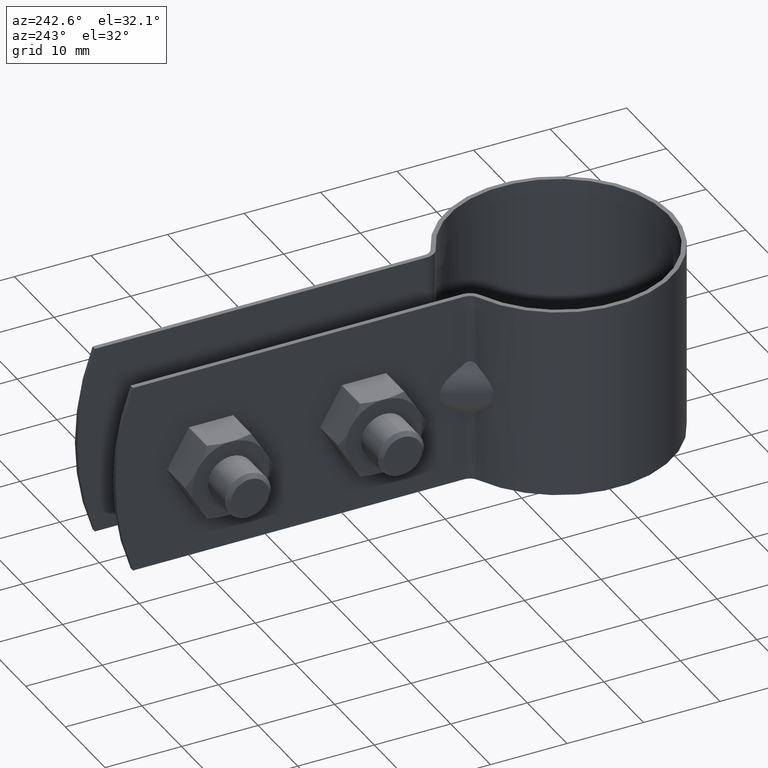
[diagram: clean part render]
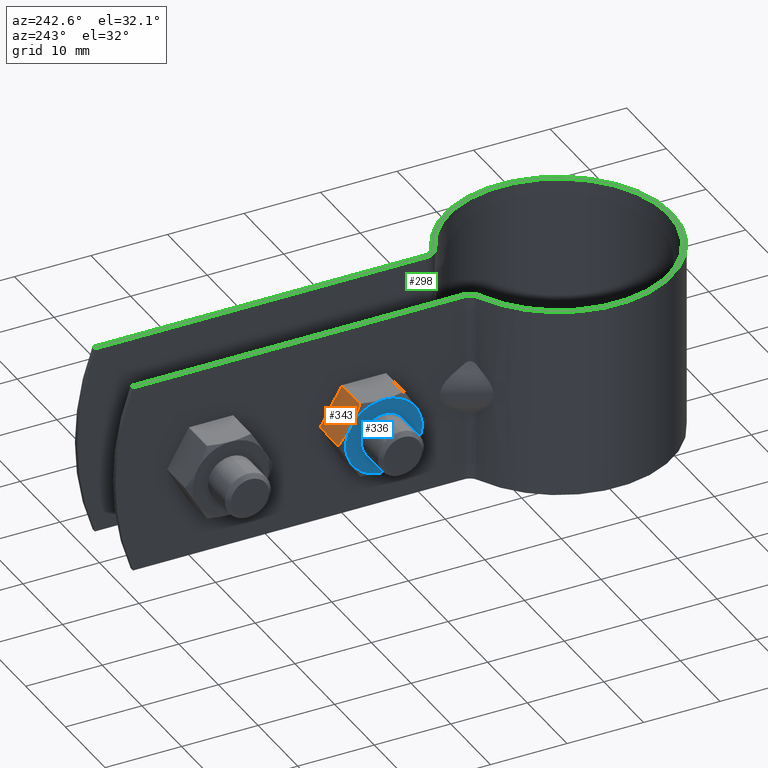
[diagram: same view with three faces highlighted in distinct colors, each labeled with its STEP entity id]
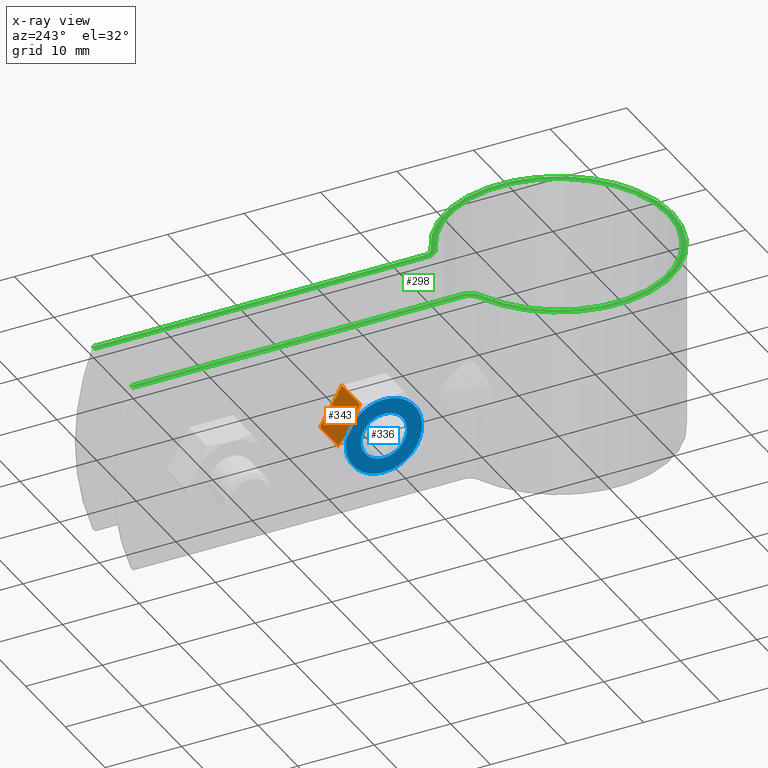
[diagram: x-ray of the same camera — body ghosted, the three highlighted faces saturated]
A machine part, auxiliary view with three faces highlighted in distinct colors.
The next image is the same camera in x-ray (body ghosted, the three faces saturated) — at least one of them is partly hidden behind the body in this view.
Their STEP definitions:

[orange] entity #343 — the highlighted planar face has unit normal (0, -0.866, -0.5).
#343 = ADVANCED_FACE( '', ( #544 ), #545, .F. );
#544 = FACE_OUTER_BOUND( '', #776, .T. );
#545 = PLANE( '', #777 );
#776 = EDGE_LOOP( '', ( #1438, #1439, #1440, #1441, #1442 ) );
#777 = AXIS2_PLACEMENT_3D( '', #1443, #1444, #1445 );
#1438 = ORIENTED_EDGE( '', *, *, #1812, .F. );
#1439 = ORIENTED_EDGE( '', *, *, #1817, .F. );
#1440 = ORIENTED_EDGE( '', *, *, #1811, .F. );
#1441 = ORIENTED_EDGE( '', *, *, #1808, .F. );
#1442 = ORIENTED_EDGE( '', *, *, #1818, .F. );
#1443 = CARTESIAN_POINT( '', ( -5.10000000000003, 33.8364706561729, -8.67361737988404E-016 ) );
#1444 = DIRECTION( '', ( 0.000000000000000, -0.866025403784439, -0.500000000000000 ) );
#1445 = DIRECTION( '', ( 0.000000000000000, 0.500000000000000, -0.866025403784439 ) );
#1808 = EDGE_CURVE( '', #2181, #2163, #2183, .T. );
#1811 = EDGE_CURVE( '', #2163, #2184, #2188, .F. );
#1812 = EDGE_CURVE( '', #2141, #2189, #2190, .T. );
#1817 = EDGE_CURVE( '', #2184, #2141, #2196, .T. );
#1818 = EDGE_CURVE( '', #2189, #2181, #2197, .T. );
#2141 = VERTEX_POINT( '', #2763 );
#2163 = VERTEX_POINT( '', #2798 );
#2181 = VERTEX_POINT( '', #2820 );
#2183 = LINE( '', #2822, #2823 );
#2184 = VERTEX_POINT( '', #2824 );
#2188 = LINE( '', #2829, #2830 );
#2189 = VERTEX_POINT( '', #2831 );
#2190 = B_SPLINE_CURVE_WITH_KNOTS( '', 3, ( #2832, #2833, #2834, #2835, #2836, #2837, #2838, #2839 ), .UNSPECIFIED., .F., .F., ( 4, 2, 2, 4 ), ( 0.00287277010488779, 0.00358771851305245, 0.00430266692121712, 0.00573256373754644 ), .UNSPECIFIED. );
#2196 = B_SPLINE_CURVE_WITH_KNOTS( '', 3, ( #2854, #2855, #2856, #2857 ), .UNSPECIFIED., .F., .F., ( 4, 4 ), ( 7.22330826799219E-007, 0.00287277010488779 ), .UNSPECIFIED. );
#2197 = LINE( '', #2858, #2859 );
#2763 = CARTESIAN_POINT( '', ( -10.0999999999999, 32.3930949831989, 2.49999999999993 ) );
#2798 = CARTESIAN_POINT( '', ( -5.10000000000003, 30.9733678967489, 4.95903944661311 ) );
#2820 = CARTESIAN_POINT( '', ( -5.10000000000003, 33.8128220696489, 0.0409605533867487 ) );
#2822 = CARTESIAN_POINT( '', ( -5.10000000000003, 33.8305949831989, 0.0101769641197375 ) );
#2823 = VECTOR( '', #3302, 1000.00000000000 );
#2824 = CARTESIAN_POINT( '', ( -9.66698729810768, 30.9733678967489, 4.95903944661311 ) );
#2829 = CARTESIAN_POINT( '', ( -5.10000000000003, 30.9733678967489, 4.95903944661311 ) );
#2830 = VECTOR( '', #3307, 1000.00000000000 );
#2831 = CARTESIAN_POINT( '', ( -9.66698729810768, 33.8128220696489, 0.0409605533867474 ) );
#2832 = CARTESIAN_POINT( '', ( -10.0999999999999, 32.3930949831989, 2.49999999999993 ) );
#2833 = CARTESIAN_POINT( '', ( -10.0999999999999, 32.5134064625444, 2.29161440503969 ) );
#2834 = CARTESIAN_POINT( '', ( -10.0898108720831, 32.6344131182986, 2.08202472921952 ) );
#2835 = CARTESIAN_POINT( '', ( -10.0502996398892, 32.8738213367538, 1.66735753110549 ) );
#2836 = CARTESIAN_POINT( '', ( -10.0210226875359, 32.9927379247126, 1.46138795889826 ) );
#2837 = CARTESIAN_POINT( '', ( -9.90799451667562, 33.3474035882059, 0.847089010027620 ) );
#2838 = CARTESIAN_POINT( '', ( -9.79913188755693, 33.5810756685147, 0.442357094622566 ) );
#2839 = CARTESIAN_POINT( '', ( -9.66698729810769, 33.8128220696489, 0.0409605533867456 ) );
#2854 = CARTESIAN_POINT( '', ( -9.66698729810769, 30.9733678967489, 4.95903944661310 ) );
#2855 = CARTESIAN_POINT( '', ( -9.93203573458736, 31.4381922345174, 4.15394007700352 ) );
#2856 = CARTESIAN_POINT( '', ( -10.0999999999999, 31.9097869395663, 3.33711408727835 ) );
#2857 = CARTESIAN_POINT( '', ( -10.0999999999999, 32.3930949831989, 2.49999999999993 ) );
#2858 = CARTESIAN_POINT( '', ( -5.10000000000003, 33.8128220696489, 0.0409605533867476 ) );
#2859 = VECTOR( '', #3312, 1000.00000000000 );
#3302 = DIRECTION( '', ( 0.000000000000000, -0.500000000000000, 0.866025403784439 ) );
#3307 = DIRECTION( '', ( 1.00000000000000, 0.000000000000000, 0.000000000000000 ) );
#3312 = DIRECTION( '', ( 1.00000000000000, 0.000000000000000, 0.000000000000000 ) );

[blue] entity #336 — the highlighted planar face has unit normal (1, 0, 0).
#336 = ADVANCED_FACE( '', ( #528, #529 ), #530, .F. );
#528 = FACE_OUTER_BOUND( '', #760, .T. );
#529 = FACE_BOUND( '', #761, .T. );
#530 = PLANE( '', #762 );
#760 = EDGE_LOOP( '', ( #1375, #1376, #1377, #1378, #1379, #1380 ) );
#761 = EDGE_LOOP( '', ( #1381 ) );
#762 = AXIS2_PLACEMENT_3D( '', #1382, #1383, #1384 );
#1375 = ORIENTED_EDGE( '', *, *, #1785, .F. );
#1376 = ORIENTED_EDGE( '', *, *, #1786, .F. );
#1377 = ORIENTED_EDGE( '', *, *, #1787, .F. );
#1378 = ORIENTED_EDGE( '', *, *, #1788, .F. );
#1379 = ORIENTED_EDGE( '', *, *, #1783, .F. );
#1380 = ORIENTED_EDGE( '', *, *, #1789, .F. );
#1381 = ORIENTED_EDGE( '', *, *, #1790, .T. );
#1382 = CARTESIAN_POINT( '', ( -10.0999999999999, 28.0629679642768, -8.67361737988404E-016 ) );
#1383 = DIRECTION( '', ( 1.00000000000000, 0.000000000000000, 0.000000000000000 ) );
#1384 = DIRECTION( '', ( 0.000000000000000, 0.000000000000000, -1.00000000000000 ) );
#1783 = EDGE_CURVE( '', #2135, #2137, #2138, .T. );
#1785 = EDGE_CURVE( '', #2140, #2141, #2142, .T. );
#1786 = EDGE_CURVE( '', #2143, #2140, #2144, .T. );
#1787 = EDGE_CURVE( '', #2145, #2143, #2146, .T. );
#1788 = EDGE_CURVE( '', #2137, #2145, #2147, .T. );
#1789 = EDGE_CURVE( '', #2141, #2135, #2148, .T. );
#1790 = EDGE_CURVE( '', #2149, #2149, #2150, .T. );
#2135 = VERTEX_POINT( '', #2745 );
#2137 = VERTEX_POINT( '', #2752 );
#2138 = CIRCLE( '', #2753, 4.99999999999986 );
#2140 = VERTEX_POINT( '', #2762 );
#2141 = VERTEX_POINT( '', #2763 );
#2142 = CIRCLE( '', #2764, 4.99999999999986 );
#2143 = VERTEX_POINT( '', #2765 );
#2144 = CIRCLE( '', #2766, 4.99999999999986 );
#2145 = VERTEX_POINT( '', #2767 );
#2146 = CIRCLE( '', #2768, 4.99999999999986 );
#2147 = CIRCLE( '', #2769, 4.99999999999986 );
#2148 = CIRCLE( '', #2770, 4.99999999999986 );
#2149 = VERTEX_POINT( '', #2771 );
#2150 = CIRCLE( '', #2772, 2.99999999999991 );
#2745 = CARTESIAN_POINT( '', ( -10.0999999999999, 28.0629679642768, 4.99999999999986 ) );
#2752 = CARTESIAN_POINT( '', ( -10.0999999999999, 23.7328409453548, 2.49999999999993 ) );
#2753 = AXIS2_PLACEMENT_3D( '', #3250, #3251, #3252 );
#2762 = CARTESIAN_POINT( '', ( -10.0999999999999, 32.3930949831989, -2.49999999999993 ) );
#2763 = CARTESIAN_POINT( '', ( -10.0999999999999, 32.3930949831989, 2.49999999999993 ) );
#2764 = AXIS2_PLACEMENT_3D( '', #3253, #3254, #3255 );
#2765 = CARTESIAN_POINT( '', ( -10.0999999999999, 28.0629679642768, -4.99999999999986 ) );
#2766 = AXIS2_PLACEMENT_3D( '', #3256, #3257, #3258 );
#2767 = CARTESIAN_POINT( '', ( -10.0999999999999, 23.7328409453548, -2.49999999999993 ) );
#2768 = AXIS2_PLACEMENT_3D( '', #3259, #3260, #3261 );
#2769 = AXIS2_PLACEMENT_3D( '', #3262, #3263, #3264 );
#2770 = AXIS2_PLACEMENT_3D( '', #3265, #3266, #3267 );
#2771 = CARTESIAN_POINT( '', ( -10.0999999999999, 28.0629679642768, -2.99999999999992 ) );
#2772 = AXIS2_PLACEMENT_3D( '', #3268, #3269, #3270 );
#3250 = CARTESIAN_POINT( '', ( -10.0999999999999, 28.0629679642768, -8.67361737988404E-016 ) );
#3251 = DIRECTION( '', ( 1.00000000000000, 0.000000000000000, 0.000000000000000 ) );
#3252 = DIRECTION( '', ( 0.000000000000000, 0.000000000000000, -1.00000000000000 ) );
#3253 = CARTESIAN_POINT( '', ( -10.0999999999999, 28.0629679642768, -8.67361737988404E-016 ) );
#3254 = DIRECTION( '', ( 1.00000000000000, 0.000000000000000, 0.000000000000000 ) );
#3255 = DIRECTION( '', ( 0.000000000000000, 0.000000000000000, -1.00000000000000 ) );
#3256 = CARTESIAN_POINT( '', ( -10.0999999999999, 28.0629679642768, -8.67361737988404E-016 ) );
#3257 = DIRECTION( '', ( 1.00000000000000, 0.000000000000000, 0.000000000000000 ) );
#3258 = DIRECTION( '', ( 0.000000000000000, 0.000000000000000, -1.00000000000000 ) );
#3259 = CARTESIAN_POINT( '', ( -10.0999999999999, 28.0629679642768, -8.67361737988404E-016 ) );
#3260 = DIRECTION( '', ( 1.00000000000000, 0.000000000000000, 0.000000000000000 ) );
#3261 = DIRECTION( '', ( 0.000000000000000, 0.000000000000000, -1.00000000000000 ) );
#3262 = CARTESIAN_POINT( '', ( -10.0999999999999, 28.0629679642768, -8.67361737988404E-016 ) );
#3263 = DIRECTION( '', ( 1.00000000000000, 0.000000000000000, 0.000000000000000 ) );
#3264 = DIRECTION( '', ( 0.000000000000000, 0.000000000000000, -1.00000000000000 ) );
#3265 = CARTESIAN_POINT( '', ( -10.0999999999999, 28.0629679642768, -8.67361737988404E-016 ) );
#3266 = DIRECTION( '', ( 1.00000000000000, 0.000000000000000, 0.000000000000000 ) );
#3267 = DIRECTION( '', ( 0.000000000000000, 0.000000000000000, -1.00000000000000 ) );
#3268 = CARTESIAN_POINT( '', ( -10.0999999999999, 28.0629679642768, -8.67361737988404E-016 ) );
#3269 = DIRECTION( '', ( 1.00000000000000, 0.000000000000000, 0.000000000000000 ) );
#3270 = DIRECTION( '', ( 0.000000000000000, 0.000000000000000, -1.00000000000000 ) );

[green] entity #298 — the highlighted planar face has unit normal (0, 0, -1).
#298 = ADVANCED_FACE( '', ( #444 ), #445, .F. );
#444 = FACE_OUTER_BOUND( '', #676, .T. );
#445 = PLANE( '', #677 );
#676 = EDGE_LOOP( '', ( #1091, #1092, #1093, #1094, #1095, #1096, #1097, #1098, #1099, #1100, #1101, #1102 ) );
#677 = AXIS2_PLACEMENT_3D( '', #1103, #1104, #1105 );
#1091 = ORIENTED_EDGE( '', *, *, #1682, .F. );
#1092 = ORIENTED_EDGE( '', *, *, #1688, .T. );
#1093 = ORIENTED_EDGE( '', *, *, #1696, .T. );
#1094 = ORIENTED_EDGE( '', *, *, #1636, .T. );
#1095 = ORIENTED_EDGE( '', *, *, #1633, .T. );
#1096 = ORIENTED_EDGE( '', *, *, #1693, .T. );
#1097 = ORIENTED_EDGE( '', *, *, #1684, .F. );
#1098 = ORIENTED_EDGE( '', *, *, #1695, .F. );
#1099 = ORIENTED_EDGE( '', *, *, #1698, .F. );
#1100 = ORIENTED_EDGE( '', *, *, #1701, .F. );
#1101 = ORIENTED_EDGE( '', *, *, #1706, .F. );
#1102 = ORIENTED_EDGE( '', *, *, #1703, .F. );
#1103 = CARTESIAN_POINT( '', ( -4.50000000000000, 60.5629679642769, 12.5000000000000 ) );
#1104 = DIRECTION( '', ( 0.000000000000000, 0.000000000000000, -1.00000000000000 ) );
#1105 = DIRECTION( '', ( -6.06692130572647E-017, -1.00000000000000, 0.000000000000000 ) );
#1633 = EDGE_CURVE( '', #1888, #1886, #1889, .F. );
#1636 = EDGE_CURVE( '', #1893, #1888, #1894, .T. );
#1682 = EDGE_CURVE( '', #1972, #1974, #1975, .T. );
#1684 = EDGE_CURVE( '', #1977, #1978, #1979, .T. );
#1688 = EDGE_CURVE( '', #1972, #1982, #1984, .T. );
#1693 = EDGE_CURVE( '', #1886, #1978, #1991, .T. );
#1695 = EDGE_CURVE( '', #1992, #1977, #1994, .T. );
#1696 = EDGE_CURVE( '', #1982, #1893, #1995, .F. );
#1698 = EDGE_CURVE( '', #1996, #1992, #1998, .T. );
#1701 = EDGE_CURVE( '', #2000, #1996, #2002, .T. );
#1703 = EDGE_CURVE( '', #1974, #2004, #2005, .T. );
#1706 = EDGE_CURVE( '', #2004, #2000, #2008, .T. );
#1886 = VERTEX_POINT( '', #2294 );
#1888 = VERTEX_POINT( '', #2297 );
#1889 = CIRCLE( '', #2298, 1.40000000000000 );
#1893 = VERTEX_POINT( '', #2303 );
#1894 = CIRCLE( '', #2304, 14.8900000000000 );
#1972 = VERTEX_POINT( '', #2469 );
#1974 = VERTEX_POINT( '', #2471 );
#1975 = LINE( '', #2472, #2473 );
#1977 = VERTEX_POINT( '', #2475 );
#1978 = VERTEX_POINT( '', #2476 );
#1979 = LINE( '', #2477, #2478 );
#1982 = VERTEX_POINT( '', #2481 );
#1984 = LINE( '', #2484, #2485 );
#1991 = LINE( '', #2495, #2496 );
#1992 = VERTEX_POINT( '', #2497 );
#1994 = LINE( '', #2500, #2501 );
#1995 = CIRCLE( '', #2502, 1.40000000000000 );
#1996 = VERTEX_POINT( '', #2503 );
#1998 = CIRCLE( '', #2506, 2.00000000000000 );
#2000 = VERTEX_POINT( '', #2509 );
#2002 = CIRCLE( '', #2512, 14.2900000000000 );
#2004 = VERTEX_POINT( '', #2515 );
#2005 = LINE( '', #2516, #2517 );
#2008 = CIRCLE( '', #2521, 2.00000000000000 );
#2294 = CARTESIAN_POINT( '', ( 5.10000000000000, 14.9370043850834, 12.5000000000000 ) );
#2297 = CARTESIAN_POINT( '', ( 5.94137507673420, 13.6532839345544, 12.5000000000000 ) );
#2298 = AXIS2_PLACEMENT_3D( '', #2993, #2994, #2995 );
#2303 = CARTESIAN_POINT( '', ( -5.94137507673420, 13.6532839345544, 12.5000000000000 ) );
#2304 = AXIS2_PLACEMENT_3D( '', #3000, #3001, #3002 );
#2469 = CARTESIAN_POINT( '', ( -5.09999999999999, 58.2547100408319, 12.5000000000000 ) );
#2471 = CARTESIAN_POINT( '', ( -4.50000000000001, 58.2547100408318, 12.5000000000000 ) );
#2472 = CARTESIAN_POINT( '', ( -63.2894678254012, 58.2547100408319, 12.5000000000000 ) );
#2473 = VECTOR( '', #3092, 1000.00000000000 );
#2475 = CARTESIAN_POINT( '', ( 4.49999999999998, 58.2547100408318, 12.5000000000000 ) );
#2476 = CARTESIAN_POINT( '', ( 5.10000000000000, 58.2547100408319, 12.5000000000000 ) );
#2477 = CARTESIAN_POINT( '', ( -63.2894678254012, 58.2547100408319, 12.5000000000000 ) );
#2478 = VECTOR( '', #3096, 1000.00000000000 );
#2481 = CARTESIAN_POINT( '', ( -5.10000000000000, 14.9370043850834, 12.5000000000000 ) );
#2484 = CARTESIAN_POINT( '', ( -5.10000000000000, 60.5629679642769, 12.5000000000000 ) );
#2485 = VECTOR( '', #3104, 1000.00000000000 );
#2495 = CARTESIAN_POINT( '', ( 5.10000000000000, 14.9370043850834, 12.5000000000000 ) );
#2496 = VECTOR( '', #3111, 1000.00000000000 );
#2497 = CARTESIAN_POINT( '', ( 4.50000000000000, 14.9370043850834, 12.5000000000000 ) );
#2500 = CARTESIAN_POINT( '', ( 4.50000000000000, 14.9370043850834, 12.5000000000000 ) );
#2501 = VECTOR( '', #3113, 1000.00000000000 );
#2502 = AXIS2_PLACEMENT_3D( '', #3114, #3115, #3116 );
#2503 = CARTESIAN_POINT( '', ( 5.70196439533457, 13.1031180271849, 12.5000000000000 ) );
#2506 = AXIS2_PLACEMENT_3D( '', #3118, #3119, #3120 );
#2509 = CARTESIAN_POINT( '', ( -5.70196439533457, 13.1031180271849, 12.5000000000000 ) );
#2512 = AXIS2_PLACEMENT_3D( '', #3123, #3124, #3125 );
#2515 = CARTESIAN_POINT( '', ( -4.50000000000000, 14.9370043850834, 12.5000000000000 ) );
#2516 = CARTESIAN_POINT( '', ( -4.50000000000000, 60.5629679642769, 12.5000000000000 ) );
#2517 = VECTOR( '', #3127, 1000.00000000000 );
#2521 = AXIS2_PLACEMENT_3D( '', #3132, #3133, #3134 );
#2993 = CARTESIAN_POINT( '', ( 6.50000000000000, 14.9370043850834, 12.5000000000000 ) );
#2994 = DIRECTION( '', ( 0.000000000000000, 0.000000000000000, 1.00000000000000 ) );
#2995 = DIRECTION( '', ( 1.00000000000000, 0.000000000000000, 0.000000000000000 ) );
#3000 = CARTESIAN_POINT( '', ( 0.000000000000000, 0.000000000000000, 12.5000000000000 ) );
#3001 = DIRECTION( '', ( 0.000000000000000, 0.000000000000000, 1.00000000000000 ) );
#3002 = DIRECTION( '', ( 1.00000000000000, 0.000000000000000, 0.000000000000000 ) );
#3092 = DIRECTION( '', ( 1.00000000000000, -6.06692130572647E-017, -3.08148791101958E-033 ) );
#3096 = DIRECTION( '', ( 1.00000000000000, -6.06692130572647E-017, -3.08148791101958E-033 ) );
#3104 = DIRECTION( '', ( -6.06692130572647E-017, -1.00000000000000, 0.000000000000000 ) );
#3111 = DIRECTION( '', ( 6.06692130572647E-017, 1.00000000000000, 0.000000000000000 ) );
#3113 = DIRECTION( '', ( 6.06692130572647E-017, 1.00000000000000, 0.000000000000000 ) );
#3114 = CARTESIAN_POINT( '', ( -6.50000000000000, 14.9370043850834, 12.5000000000000 ) );
#3115 = DIRECTION( '', ( 0.000000000000000, 0.000000000000000, 1.00000000000000 ) );
#3116 = DIRECTION( '', ( 1.00000000000000, 0.000000000000000, 0.000000000000000 ) );
#3118 = CARTESIAN_POINT( '', ( 6.50000000000000, 14.9370043850834, 12.5000000000000 ) );
#3119 = DIRECTION( '', ( 0.000000000000000, 0.000000000000000, -1.00000000000000 ) );
#3120 = DIRECTION( '', ( -1.00000000000000, 6.06692130572647E-017, 0.000000000000000 ) );
#3123 = CARTESIAN_POINT( '', ( 0.000000000000000, 0.000000000000000, 12.5000000000000 ) );
#3124 = DIRECTION( '', ( 0.000000000000000, 0.000000000000000, 1.00000000000000 ) );
#3125 = DIRECTION( '', ( 1.00000000000000, -6.06692130572647E-017, 0.000000000000000 ) );
#3127 = DIRECTION( '', ( -6.06692130572647E-017, -1.00000000000000, 0.000000000000000 ) );
#3132 = CARTESIAN_POINT( '', ( -6.50000000000000, 14.9370043850834, 12.5000000000000 ) );
#3133 = DIRECTION( '', ( 0.000000000000000, 0.000000000000000, -1.00000000000000 ) );
#3134 = DIRECTION( '', ( 1.00000000000000, -6.06692130572647E-017, 0.000000000000000 ) );